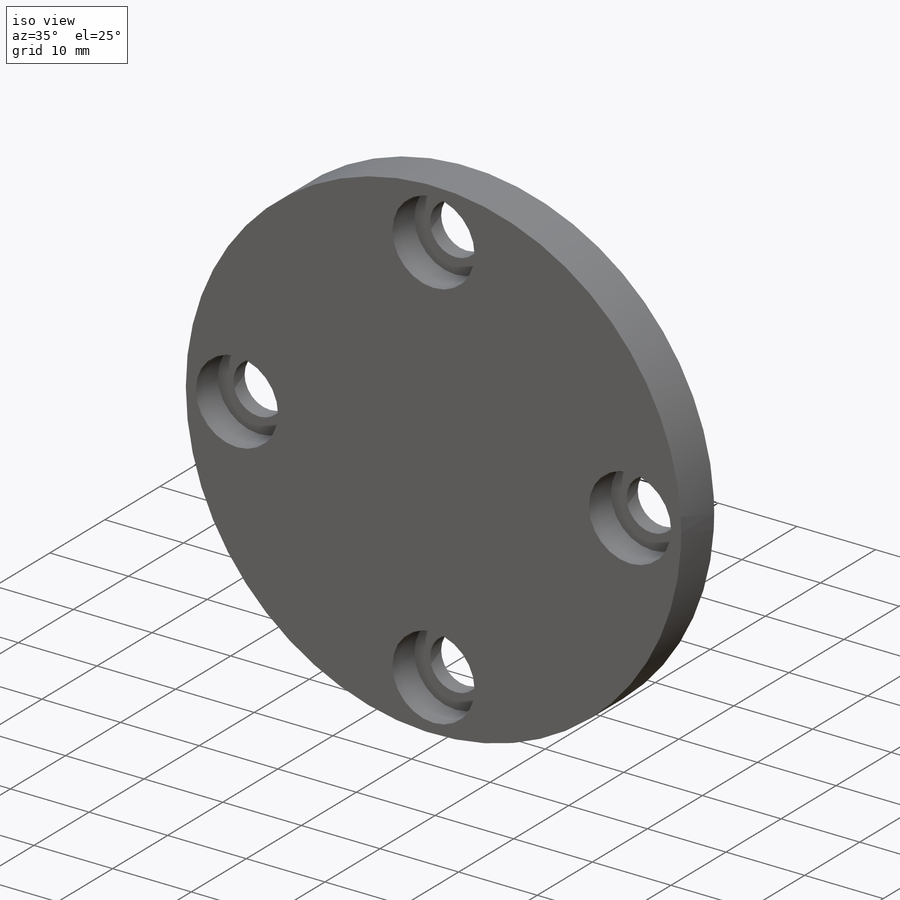
[diagram: iso view]
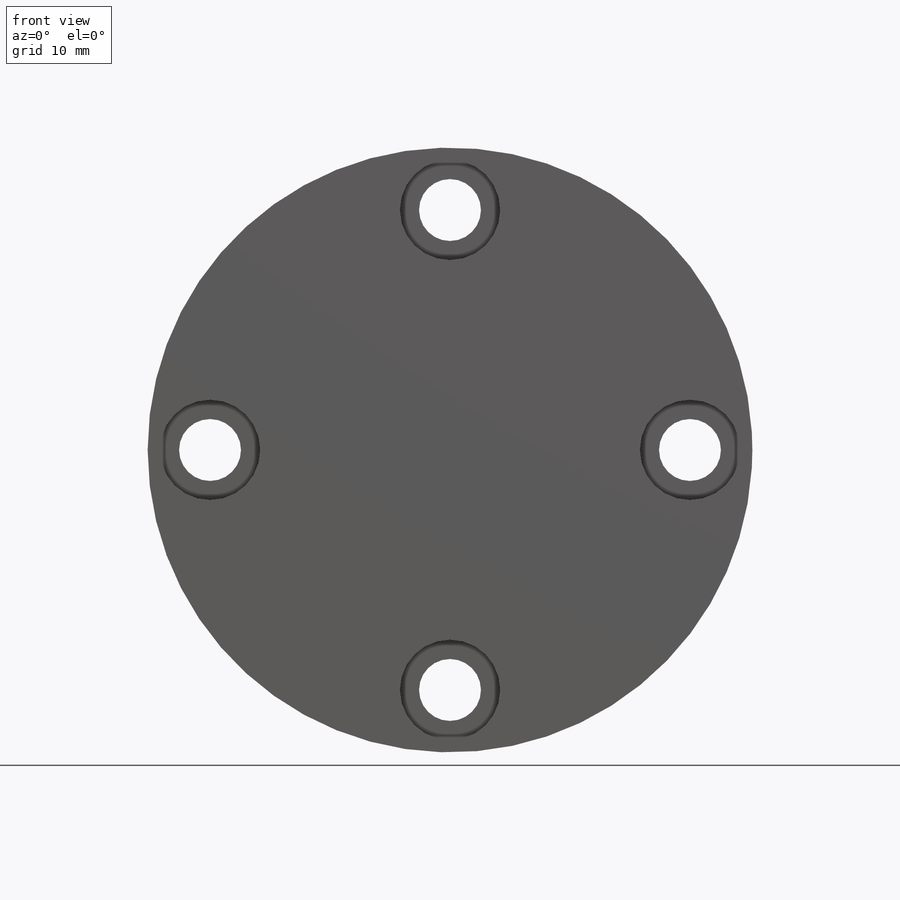
[diagram: front view]
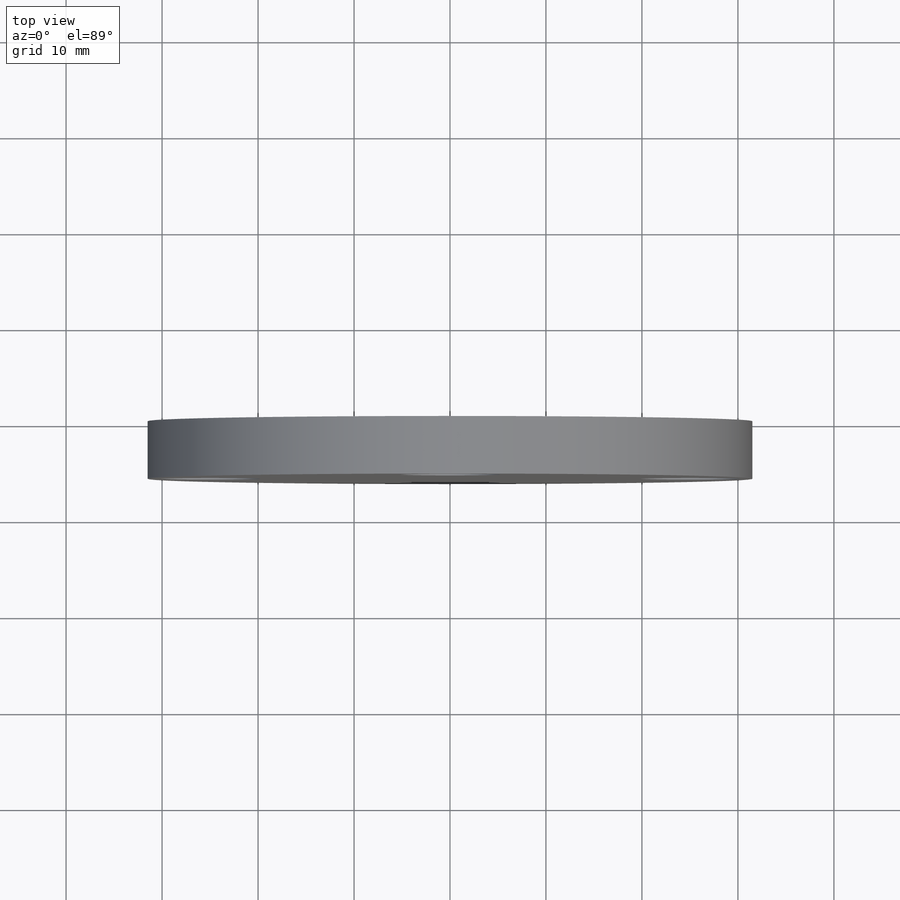
[diagram: top view]
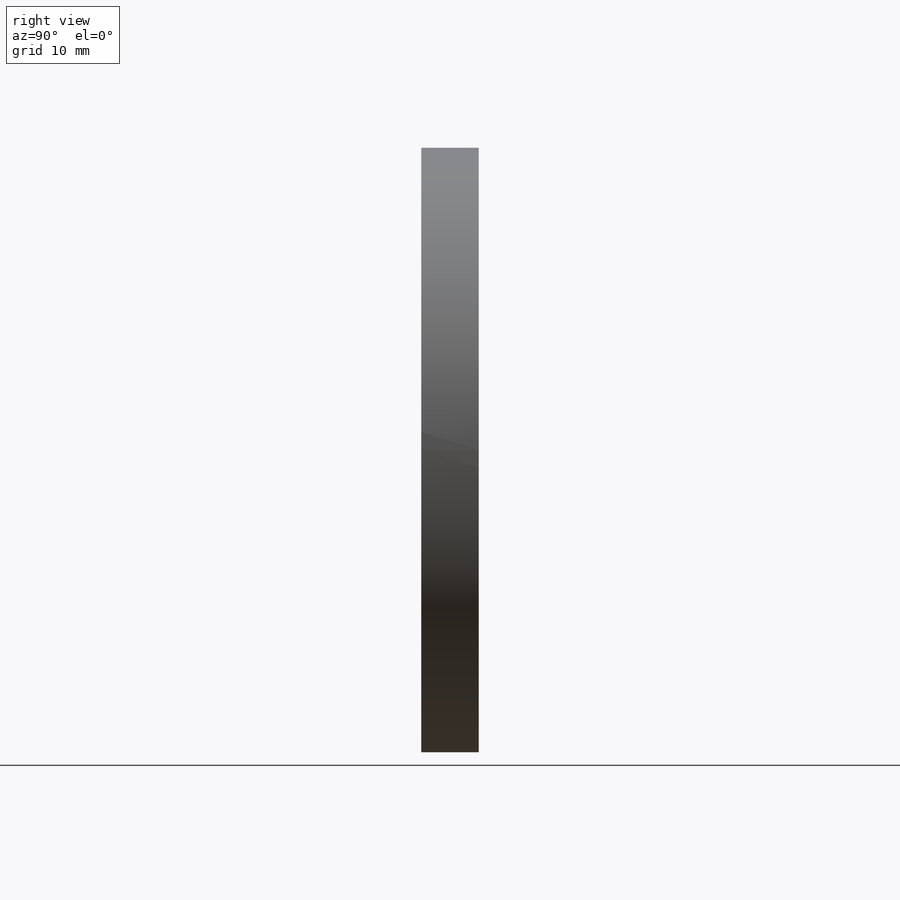
[diagram: right view]
SOLIDWORKS PART (.sldprt)
format: sldprt  version: not decoded by parser v0  size: 201,216 bytes
history: native  units: mm
features: sketch x3, material x1, extrude x1, cut_extrude x1 (+12 scaffold rows collapsed)
feature tree (18):
  scaffold x12  (default folders/planes/origin — collapsed)
  material  "ABS"
  sketch  "Sketch1"  dims[c1.D1=63.0mm c1.D2=69.4mm c1.D3=3.45mm c1.D7=6.45mm c2.D2=12.45mm c2.D4=25.84mm c2.D5=32.65mm c2.D6=25.0mm c2.D8=4.0]
  extrude  "Main PA10 Flange"  Depth=6mm
  sketch  "Sketch3"  dims[D1=10.45mm D2=4.0]
  cut_extrude  "M6 Hole"  Depth=4mm
  sketch  "Coupling Base"  dims[D1=17.0mm D2=38.0mm]
decode coverage: 5 of 5 modeling features carry decoded parameters
note: suppression state not decoded; provenance and decode notes live in map.json
